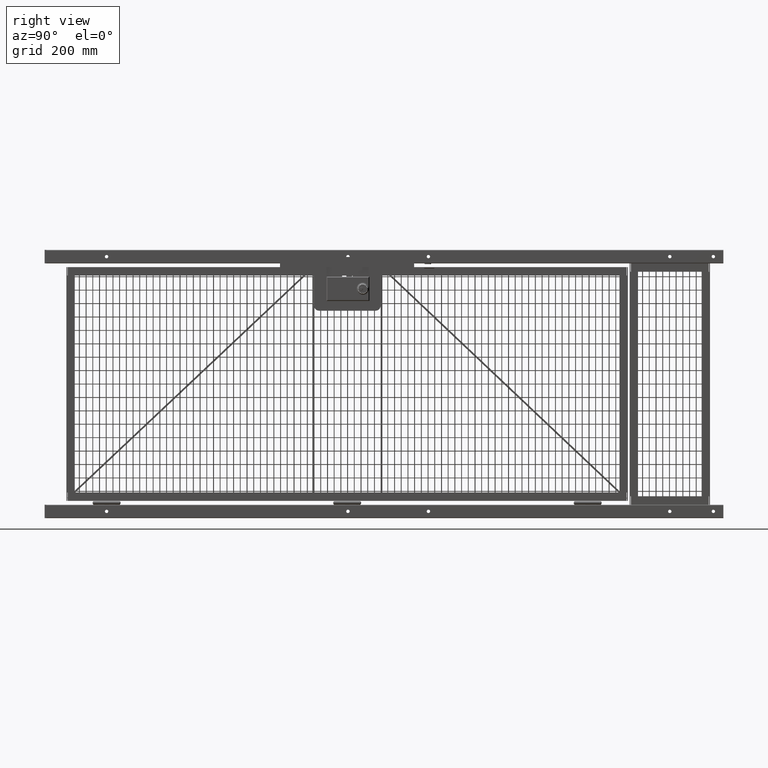
[diagram: clean part render]
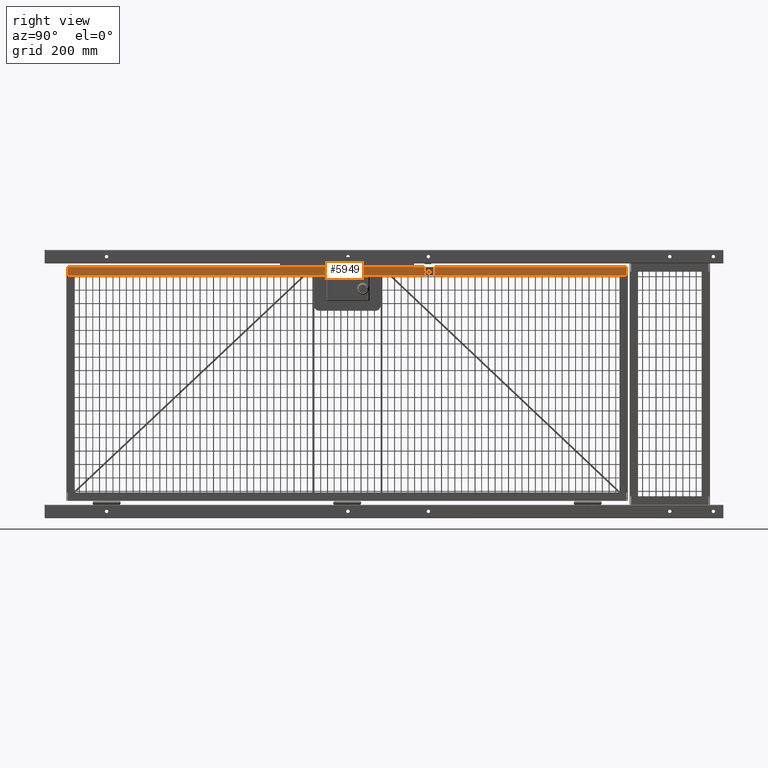
[diagram: same view with one face highlighted and labeled with its STEP entity id]
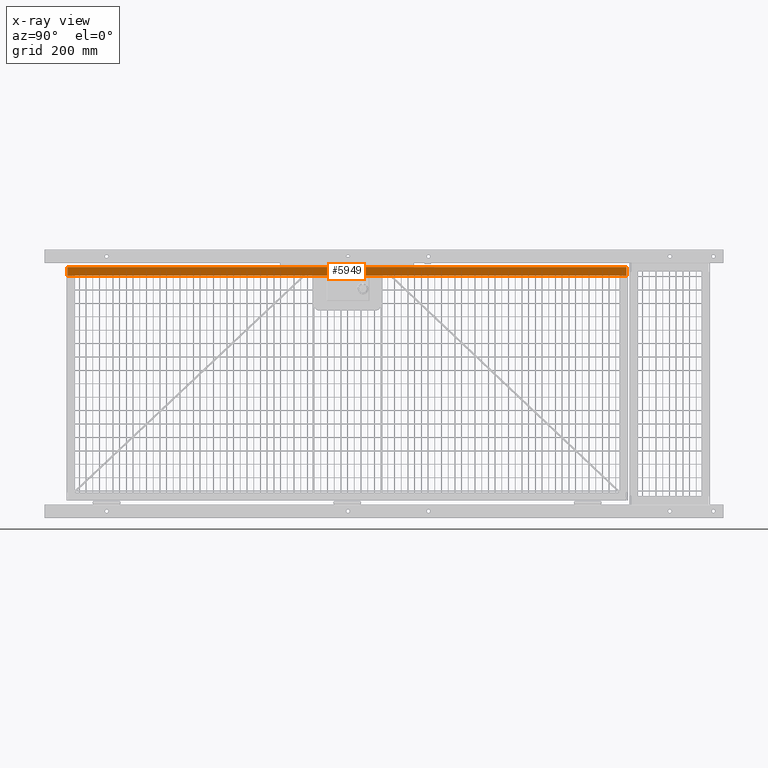
[diagram: x-ray of the same camera — body ghosted, the highlighted face saturated]
A machine part, right view. The second image highlights one B-rep face of the part: STEP entity #5949.
The next image is the same camera in x-ray: the body ghosted, the highlighted face saturated — about 0% of this face is hidden behind the body in this view.
In plain terms, the highlighted planar face has unit normal (1, -0, -0).
Its self-contained STEP definition (entity closure, byte-faithful):
#5793=CARTESIAN_POINT('',(0.0,0.0,-41.687500000000007));
#5794=VERTEX_POINT('',#5793);
#5801=CARTESIAN_POINT('',(-1.250000000000000,0.0,-41.687500000000007));
#5802=VERTEX_POINT('',#5801);
#5803=CARTESIAN_POINT('',(-1.250000000000000,0.0,-41.687500000000007));
#5804=DIRECTION('',(1.0,0.0,0.0));
#5805=VECTOR('',#5804,1.250000000000000);
#5806=LINE('',#5803,#5805);
#5807=EDGE_CURVE('',#5802,#5794,#5806,.T.);
#5889=CARTESIAN_POINT('',(0.0,0.0,41.687500000000007));
#5890=VERTEX_POINT('',#5889);
#5897=CARTESIAN_POINT('',(0.0,0.0,41.687500000000007));
#5898=DIRECTION('',(0.0,0.0,-1.0));
#5899=VECTOR('',#5898,83.375000000000014);
#5900=LINE('',#5897,#5899);
#5901=EDGE_CURVE('',#5890,#5794,#5900,.T.);
#5926=CARTESIAN_POINT('',(0.0,0.0,0.0));
#5927=DIRECTION('',(0.0,-1.0,0.0));
#5928=DIRECTION('',(0.0,0.0,-1.0));
#5929=AXIS2_PLACEMENT_3D('',#5926,#5927,#5928);
#5930=PLANE('',#5929);
#5931=CARTESIAN_POINT('',(-1.250000000000000,0.0,41.687500000000007));
#5932=VERTEX_POINT('',#5931);
#5933=CARTESIAN_POINT('',(0.0,0.0,41.687500000000007));
#5934=DIRECTION('',(-1.0,0.0,0.0));
#5935=VECTOR('',#5934,1.250000000000000);
#5936=LINE('',#5933,#5935);
#5937=EDGE_CURVE('',#5890,#5932,#5936,.T.);
#5938=ORIENTED_EDGE('',*,*,#5937,.T.);
#5939=CARTESIAN_POINT('',(-1.250000000000000,0.0,41.687500000000007));
#5940=DIRECTION('',(0.0,0.0,-1.0));
#5941=VECTOR('',#5940,83.375000000000014);
#5942=LINE('',#5939,#5941);
#5943=EDGE_CURVE('',#5932,#5802,#5942,.T.);
#5944=ORIENTED_EDGE('',*,*,#5943,.T.);
#5945=ORIENTED_EDGE('',*,*,#5807,.T.);
#5946=ORIENTED_EDGE('',*,*,#5901,.F.);
#5947=EDGE_LOOP('',(#5938,#5944,#5945,#5946));
#5948=FACE_OUTER_BOUND('',#5947,.T.);
#5949=ADVANCED_FACE('',(#5948),#5930,.T.);